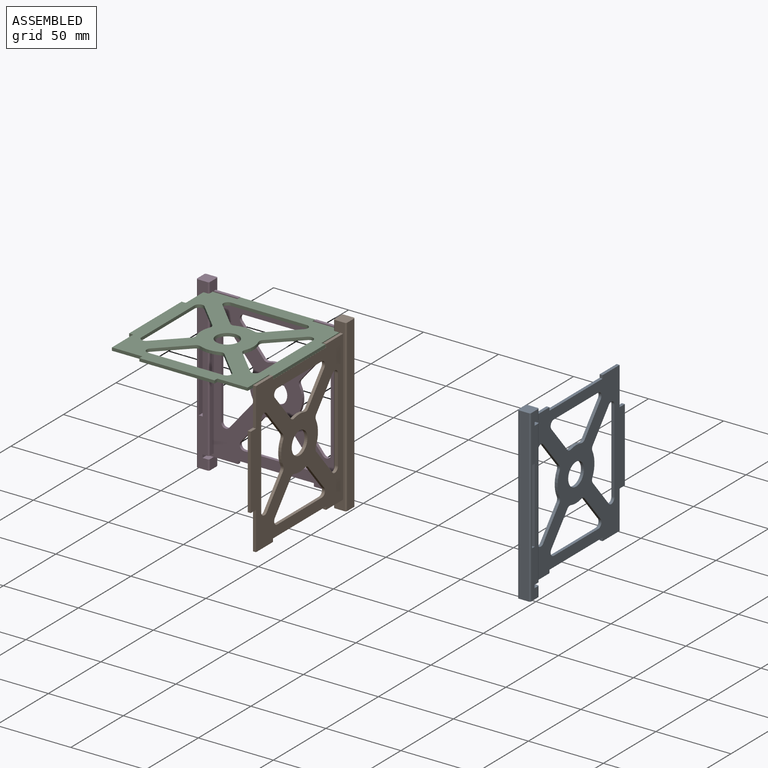
[diagram: assembled view]
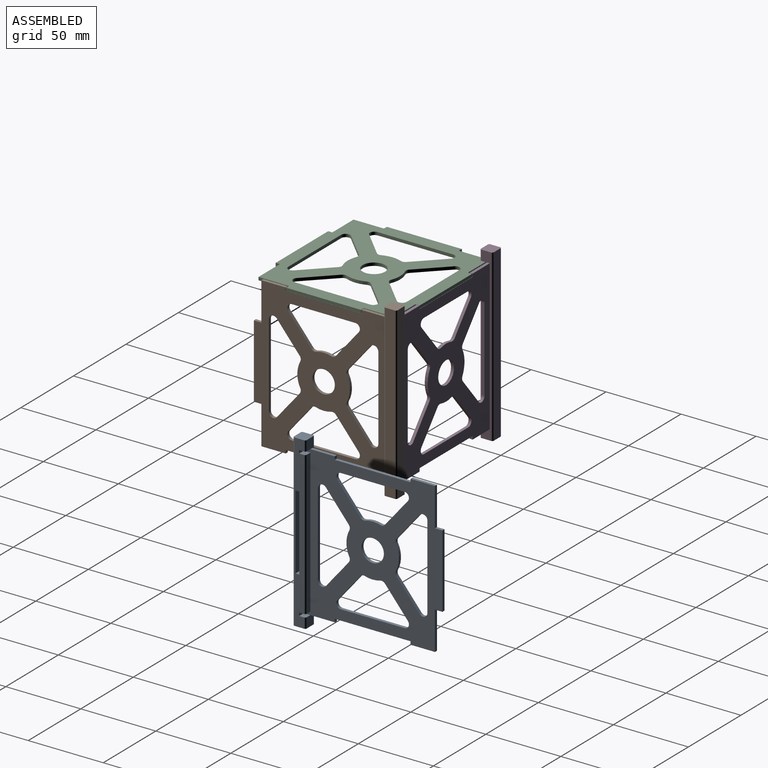
[diagram: assembled view, second angle]
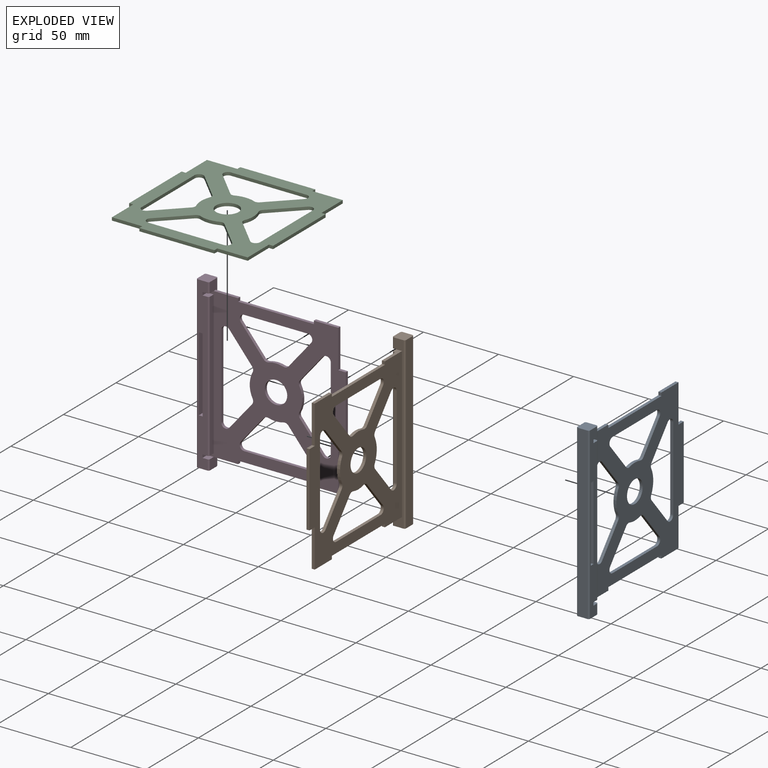
[diagram: exploded view]
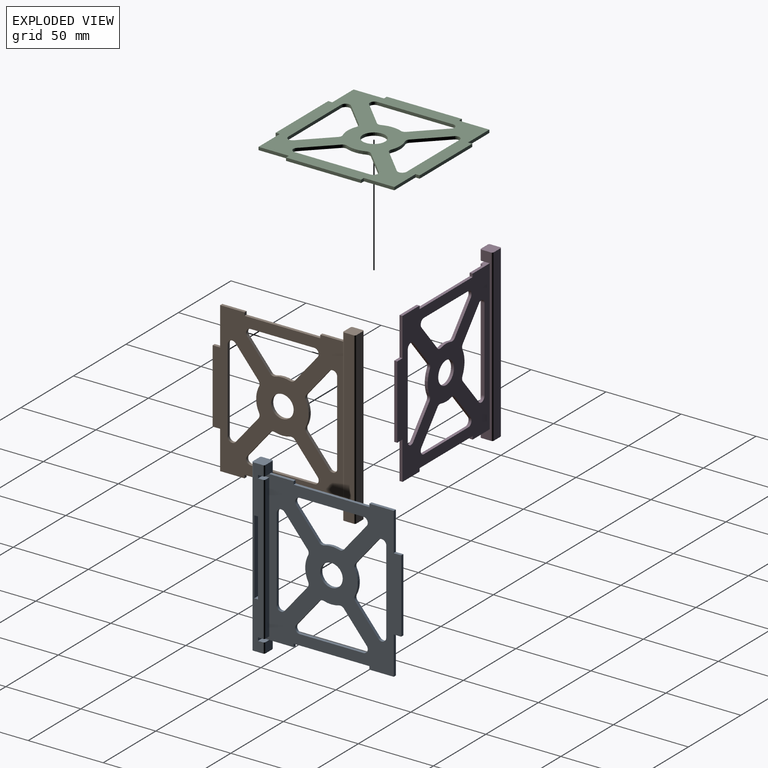
[diagram: exploded view, second angle]
ASSEMBLY  parts=4 mates=3
PART A: 74 faces, bbox 96.5x113.5x8.5 mm
  f0: plane 95.8x3.5mm, normal (1,0,0), area 335.3mm2, adj f2,f6,f70,f72
  f1: plane 113.5x6.5mm, normal (0,0,1), area 598.8mm2, adj f2,f3,f57,f58,f59,f60,f61,f62
  f2: cylinder r=1mm len=95.8mm, axis (0,1,0), area 150.5mm2, adj f0,f1,f70,f72
  f3: cylinder r=1mm len=6.75mm, axis (0,1,0), area 10.6mm2, adj f1,f54,f58,f69
  f4: plane 16.25x2mm, normal (0,1,0), area 32.5mm2, adj f6,f7,f21,f52
  f5: plane 16.25x2mm, normal (0,-1,0), area 32.5mm2, adj f6,f7,f19,f53
  f6: plane 100x92.33mm, normal (0,0,1), area 4644.1mm2, adj f0,f4,f5,f8,f9,f10,f11,f12
  f7: plane 100x88mm, normal (0,0,-1), area 4625.9mm2, adj f4,f5,f8,f9,f10,f11,f12,f13
  f8: plane 16.25x2mm, normal (0,1,0), area 32.5mm2, adj f6,f7,f22,f54
  f9: plane 16.25x2mm, normal (0,-1,0), area 32.5mm2, adj f6,f7,f18,f54
  f10: plane 18.42x15.29mm, normal (-0.77,0.64,0), area 47.9mm2, adj f6,f7,f11,f17
  f11: cylinder r=3mm len=4.92mm, axis (0,0,1), area 13.6mm2, adj f6,f7,f10,f12
  f12: plane 42.38x2mm, normal (0,-1,0), area 84.8mm2, adj f6,f7,f11,f13
  f13: cylinder r=3mm len=4.92mm, axis (0,0,1), area 13.6mm2, adj f6,f7,f12,f14
  f14: plane 18.42x15.29mm, normal (0.77,0.64,0), area 47.9mm2, adj f6,f7,f13,f15
  f15: cylinder r=3mm len=3.17mm, axis (0,0,1), area 7mm2, adj f6,f7,f14,f16
  f16: cylinder r=17.5mm len=10.07mm, axis (0,0,1), area 20.4mm2, adj f6,f7,f15,f17
  f17: cylinder r=3mm len=3.17mm, axis (0,0,1), area 7mm2, adj f6,f7,f10,f16
  f18: plane 2.1x2mm, normal (1,0,0), area 4.2mm2, adj f6,f7,f9,f20
  f19: plane 2.1x2mm, normal (-1,0,0), area 4.2mm2, adj f5,f6,f7,f20
  f20: plane 50.5x2mm, normal (0,-1,0), area 101mm2, adj f6,f7,f18,f19
  f21: plane 2.1x2mm, normal (-1,0,0), area 4.2mm2, adj f4,f6,f7,f23
  f22: plane 2.1x2mm, normal (1,0,0), area 4.2mm2, adj f6,f7,f8,f23
  f23: plane 50.5x2mm, normal (0,1,0), area 101mm2, adj f6,f7,f21,f22
  f24: cylinder r=3mm len=5.31mm, axis (0,0,1), area 14.7mm2, adj f6,f7,f25,f31
  f25: plane 55.67x2mm, normal (1,0,0), area 111.3mm2, adj f6,f7,f24,f26
  f26: cylinder r=3mm len=5.31mm, axis (0,0,1), area 14.7mm2, adj f6,f7,f25,f27
  f27: plane 18.42x15.29mm, normal (-0.77,0.64,0), area 47.9mm2, adj f6,f7,f26,f28
  f28: cylinder r=3mm len=3.29mm, axis (0,0,1), area 7mm2, adj f6,f7,f27,f29
  f29: cylinder r=17.5mm len=16.07mm, axis (0,0,1), area 33.4mm2, adj f6,f7,f28,f30
  f30: cylinder r=3mm len=3.29mm, axis (0,0,1), area 7mm2, adj f6,f7,f29,f31
  f31: plane 18.42x15.29mm, normal (-0.77,-0.64,0), area 47.9mm2, adj f6,f7,f24,f30
  f32: cylinder r=7.5mm len=15mm, axis (0,0,1), area 94.2mm2, adj f6,f7
  f33: plane 18.42x15.29mm, normal (0.77,-0.64,0), area 47.9mm2, adj f6,f7,f34,f40
  f34: cylinder r=3mm len=4.92mm, axis (0,0,1), area 13.6mm2, adj f6,f7,f33,f35
  f35: plane 42.38x2mm, normal (0,1,0), area 84.8mm2, adj f6,f7,f34,f36
  f36: cylinder r=3mm len=4.92mm, axis (0,0,1), area 13.6mm2, adj f6,f7,f35,f37
  f37: plane 18.42x15.29mm, normal (-0.77,-0.64,0), area 47.9mm2, adj f6,f7,f36,f38
  f38: cylinder r=3mm len=3.17mm, axis (0,0,1), area 7mm2, adj f6,f7,f37,f39
  f39: cylinder r=17.5mm len=10.07mm, axis (0,0,1), area 20.4mm2, adj f6,f7,f38,f40
  f40: cylinder r=3mm len=3.17mm, axis (0,0,1), area 7mm2, adj f6,f7,f33,f39
  f41: cylinder r=3mm len=5.31mm, axis (0,0,1), area 14.7mm2, adj f6,f7,f42,f48
  f42: plane 18.42x15.29mm, normal (0.77,-0.64,0), area 47.9mm2, adj f6,f7,f41,f43
  f43: cylinder r=3mm len=3.29mm, axis (0,0,1), area 7mm2, adj f6,f7,f42,f44
  f44: cylinder r=17.5mm len=16.07mm, axis (0,0,1), area 33.4mm2, adj f6,f7,f43,f45
  f45: cylinder r=3mm len=3.29mm, axis (0,0,1), area 7mm2, adj f6,f7,f44,f46
  f46: plane 18.42x15.29mm, normal (0.77,0.64,0), area 47.9mm2, adj f6,f7,f45,f47
  f47: cylinder r=3mm len=5.31mm, axis (0,0,1), area 14.7mm2, adj f6,f7,f46,f48
  f48: plane 55.67x2mm, normal (-1,0,0), area 111.3mm2, adj f6,f7,f41,f47
  f49: plane 5x2mm, normal (0,-1,0), area 10mm2, adj f6,f7,f50,f53
  f50: plane 49x2mm, normal (1,0,0), area 98mm2, adj f6,f7,f49,f51
  f51: plane 5x2mm, normal (0,1,0), area 10mm2, adj f6,f7,f50,f52
  f52: plane 25.5x2mm, normal (1,0,0), area 51mm2, adj f4,f6,f7,f51
  f53: plane 25.5x2mm, normal (1,0,0), area 51mm2, adj f5,f6,f7,f49
  f54: plane 113.5x6.5mm, normal (1,0,0), area 187.7mm2, adj f3,f7,f8,f9,f57,f58,f64,f65
  f55: plane 113.5x6.5mm, normal (0,0,-1), area 737.7mm2, adj f57,f58,f64,f67
  f56: plane 113.5x6.5mm, normal (-1,0,0), area 737.8mm2, adj f57,f58,f66,f67
  f57: plane 8.5x8.5mm, normal (0,-1,0), area 71.4mm2, adj f1,f54,f55,f56,f64,f65,f66,f67
  f58: plane 8.5x8.5mm, normal (0,1,0), area 71.4mm2, adj f1,f3,f54,f55,f56,f64,f66,f67
  f59: plane 5.2x2.5mm, normal (0,1,0), area 13mm2, adj f1,f60,f62,f63
  f60: plane 50x5.2mm, normal (-1,0,0), area 260mm2, adj f1,f59,f61,f63
  f61: plane 5.2x2.5mm, normal (0,-1,0), area 13mm2, adj f1,f60,f62,f63
  f62: plane 50x5.2mm, normal (1,0,0), area 260mm2, adj f1,f59,f61,f63
  f63: plane 50x2.5mm, normal (0,0,1), area 125mm2, adj f59,f60,f61,f62
  f64: cylinder r=1mm len=113.5mm, axis (0,-1,0), area 178.3mm2, adj f54,f55,f57,f58
  f65: cylinder r=1mm len=6.75mm, axis (0,1,0), area 10.6mm2, adj f1,f54,f57,f71
  f66: cylinder r=1mm len=113.5mm, axis (0,-1,0), area 178.3mm2, adj f1,f56,f57,f58
  f67: cylinder r=1mm len=113.5mm, axis (0,1,0), area 178.3mm2, adj f55,f56,f57,f58
  f68: plane 4.5x2.1mm, normal (1,0,0), area 9.5mm2, adj f1,f6,f69,f70
  f69: plane 4.5x4.33mm, normal (0,-1,0), area 19.3mm2, adj f1,f3,f6,f54,f68
  f70: plane 4.5x4.33mm, normal (0,1,0), area 19.3mm2, adj f0,f1,f2,f6,f68
  f71: plane 4.5x4.33mm, normal (0,1,0), area 19.3mm2, adj f1,f6,f54,f65,f73
  f72: plane 4.5x4.33mm, normal (0,-1,0), area 19.3mm2, adj f0,f1,f2,f6,f73
  f73: plane 4.5x2.1mm, normal (1,0,0), area 9.5mm2, adj f1,f6,f71,f72
PART B: same geometry as A
PART C: 55 faces, bbox 96x96x2 mm
  f0: plane 96x96mm, normal (0,0,1), area 4823.9mm2, adj f2,f3,f4,f5,f6,f7,f8,f9
  f1: plane 96x96mm, normal (0,0,-1), area 4823.9mm2, adj f2,f3,f4,f5,f6,f7,f8,f9
  f2: plane 2.75x2mm, normal (0,-1,0), area 5.5mm2, adj f0,f1,f3,f21
  f3: plane 20.25x2mm, normal (-1,0,0), area 40.5mm2, adj f0,f1,f2,f4
  f4: plane 20.25x2mm, normal (0,-1,0), area 40.5mm2, adj f0,f1,f3,f5
  f5: plane 2.75x2mm, normal (-1,0,0), area 5.5mm2, adj f0,f1,f4,f6
  f6: plane 50x2mm, normal (0,-1,0), area 100mm2, adj f0,f1,f5,f7
  f7: plane 2.75x2mm, normal (1,0,0), area 5.5mm2, adj f0,f1,f6,f8
  f8: plane 20.25x2mm, normal (0,-1,0), area 40.5mm2, adj f0,f1,f7,f9
  f9: plane 20.25x2mm, normal (1,0,0), area 40.5mm2, adj f0,f1,f8,f10
  f10: plane 2.75x2mm, normal (0,-1,0), area 5.5mm2, adj f0,f1,f9,f11
  f11: plane 50x2mm, normal (1,0,0), area 100mm2, adj f0,f1,f10,f12
  f12: plane 2.75x2mm, normal (0,1,0), area 5.5mm2, adj f0,f1,f11,f13
  f13: plane 20.25x2mm, normal (1,0,0), area 40.5mm2, adj f0,f1,f12,f14
  f14: plane 20.25x2mm, normal (0,1,0), area 40.5mm2, adj f0,f1,f13,f15
  f15: plane 2.75x2mm, normal (1,0,0), area 5.5mm2, adj f0,f1,f14,f16
  f16: plane 50x2mm, normal (0,1,0), area 100mm2, adj f0,f1,f15,f17
  f17: plane 2.75x2mm, normal (-1,0,0), area 5.5mm2, adj f0,f1,f16,f18
  f18: plane 20.25x2mm, normal (0,1,0), area 40.5mm2, adj f0,f1,f17,f19
  f19: plane 20.25x2mm, normal (-1,0,0), area 40.5mm2, adj f0,f1,f18,f20
  f20: plane 2.75x2mm, normal (0,1,0), area 5.5mm2, adj f0,f1,f19,f21
  f21: plane 50x2mm, normal (-1,0,0), area 100mm2, adj f0,f1,f2,f20
  f22: plane 17.5x17.5mm, normal (-0.71,0.71,0), area 49.5mm2, adj f0,f1,f51,f54
  f23: cylinder r=17.5mm len=13.13mm, axis (0,0,1), area 26.9mm2, adj f0,f1,f53,f54
  f24: plane 17.5x17.5mm, normal (-0.71,-0.71,0), area 49.5mm2, adj f0,f1,f52,f53
  f25: plane 50.37x2mm, normal (1,0,0), area 100.7mm2, adj f0,f1,f51,f52
  f26: plane 17.5x17.5mm, normal (0.71,-0.71,0), area 49.5mm2, adj f0,f1,f43,f46
  f27: cylinder r=17.5mm len=13.13mm, axis (0,0,1), area 26.9mm2, adj f0,f1,f45,f46
  f28: plane 17.5x17.5mm, normal (0.71,0.71,0), area 49.5mm2, adj f0,f1,f44,f45
  f29: plane 50.37x2mm, normal (-1,0,0), area 100.7mm2, adj f0,f1,f43,f44
  f30: cylinder r=17.5mm len=13.13mm, axis (0,0,1), area 26.9mm2, adj f0,f1,f39,f42
  f31: plane 17.5x17.5mm, normal (0.71,-0.71,0), area 49.5mm2, adj f0,f1,f41,f42
  f32: plane 50.37x2mm, normal (0,1,0), area 100.7mm2, adj f0,f1,f40,f41
  f33: plane 17.5x17.5mm, normal (-0.71,-0.71,0), area 49.5mm2, adj f0,f1,f39,f40
  f34: cylinder r=7.5mm len=15mm, axis (0,0,1), area 94.2mm2, adj f0,f1
  f35: cylinder r=17.5mm len=13.13mm, axis (0,0,1), area 26.9mm2, adj f0,f1,f47,f50
  f36: plane 17.5x17.5mm, normal (-0.71,0.71,0), area 49.5mm2, adj f0,f1,f47,f48
  f37: plane 50.37x2mm, normal (0,-1,0), area 100.7mm2, adj f0,f1,f48,f49
  f38: plane 17.5x17.5mm, normal (0.71,0.71,0), area 49.5mm2, adj f0,f1,f49,f50
  f39: cylinder r=3mm len=3.25mm, axis (0,0,1), area 7mm2, adj f0,f1,f30,f33
  f40: cylinder r=3mm len=5.12mm, axis (0,0,-1), area 14.1mm2, adj f0,f1,f32,f33
  f41: cylinder r=3mm len=5.12mm, axis (0,0,-1), area 14.1mm2, adj f0,f1,f31,f32
  f42: cylinder r=3mm len=3.25mm, axis (0,0,1), area 7mm2, adj f0,f1,f30,f31
  f43: cylinder r=3mm len=5.12mm, axis (0,0,-1), area 14.1mm2, adj f0,f1,f26,f29
  f44: cylinder r=3mm len=5.12mm, axis (0,0,1), area 14.1mm2, adj f0,f1,f28,f29
  f45: cylinder r=3mm len=3.25mm, axis (0,0,1), area 7mm2, adj f0,f1,f27,f28
  f46: cylinder r=3mm len=3.25mm, axis (0,0,1), area 7mm2, adj f0,f1,f26,f27
  f47: cylinder r=3mm len=3.25mm, axis (0,0,1), area 7mm2, adj f0,f1,f35,f36
  f48: cylinder r=3mm len=5.12mm, axis (0,0,-1), area 14.1mm2, adj f0,f1,f36,f37
  f49: cylinder r=3mm len=5.12mm, axis (0,0,-1), area 14.1mm2, adj f0,f1,f37,f38
  f50: cylinder r=3mm len=3.25mm, axis (0,0,1), area 7mm2, adj f0,f1,f35,f38
  f51: cylinder r=3mm len=5.12mm, axis (0,0,1), area 14.1mm2, adj f0,f1,f22,f25
  f52: cylinder r=3mm len=5.12mm, axis (0,0,-1), area 14.1mm2, adj f0,f1,f24,f25
  f53: cylinder r=3mm len=3.25mm, axis (0,0,1), area 7mm2, adj f0,f1,f23,f24
  f54: cylinder r=3mm len=3.25mm, axis (0,0,1), area 7mm2, adj f0,f1,f22,f23
PART D: same geometry as A
PLACE A rot(axis=(0.58,0.58,0.58),120deg) t=(-2.63,-10.89,-18.63)mm
PLACE B rot(axis=(0.58,-0.58,-0.58),120deg) t=(-108.93,-119.43,12.7)mm
PLACE C rot(axis=(0,0,-1),90deg) t=(-157.02,-119.54,60.6)mm
PLACE D rot(axis=(1,0,0),90deg) t=(-156.93,-71.35,12.7)mm
MATE parallel B.f1 <-> D.f52  axis (-1,0,0) through (-115.43,-76.93,66.08)mm
MATE planar D.f4 <-> B.f8  axis (0,0,1) through (-123.56,-72.35,62.7)mm
MATE planar C.f23 <-> B.f23  axis (0,0,-1) through (-157.02,-119.54,60.6)mm
